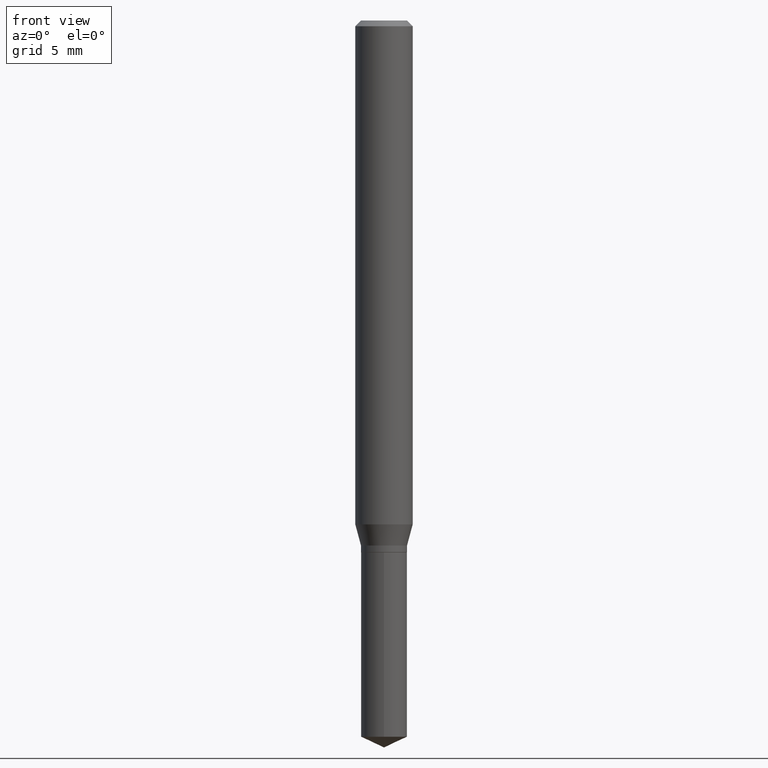
[diagram: clean part render]
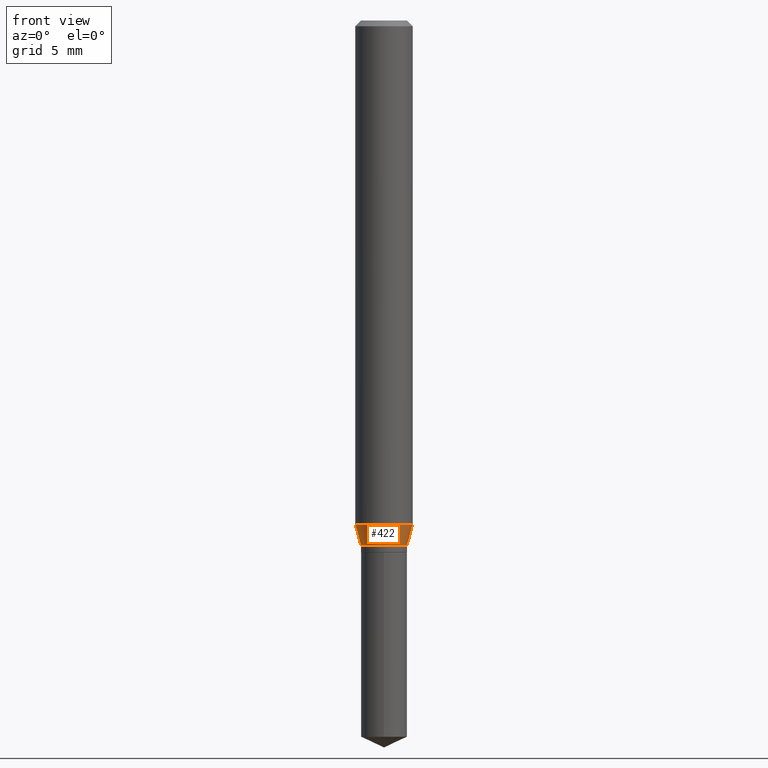
[diagram: same view with one face highlighted and labeled with its STEP entity id]
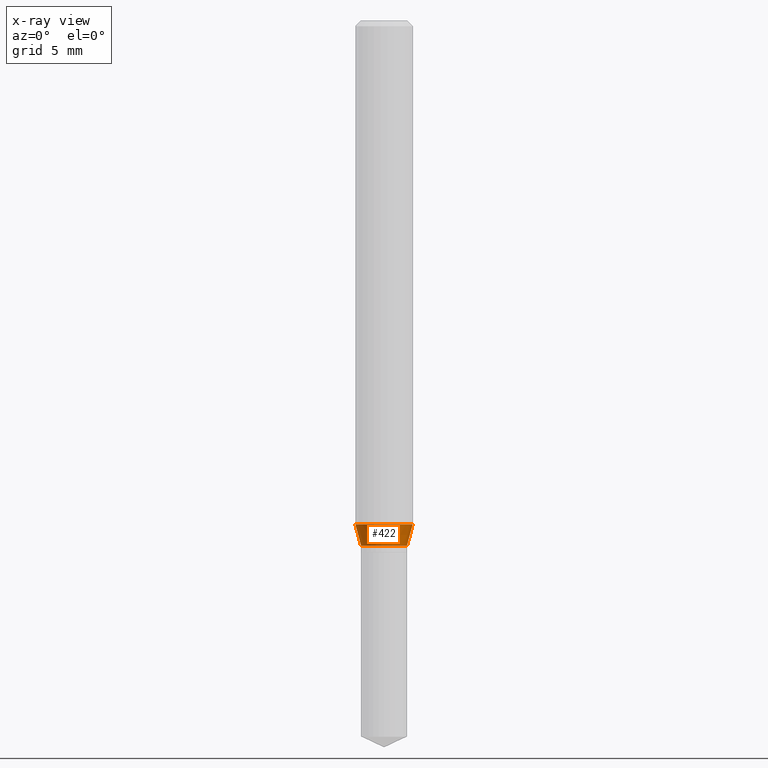
[diagram: x-ray of the same camera — body ghosted, the highlighted face saturated]
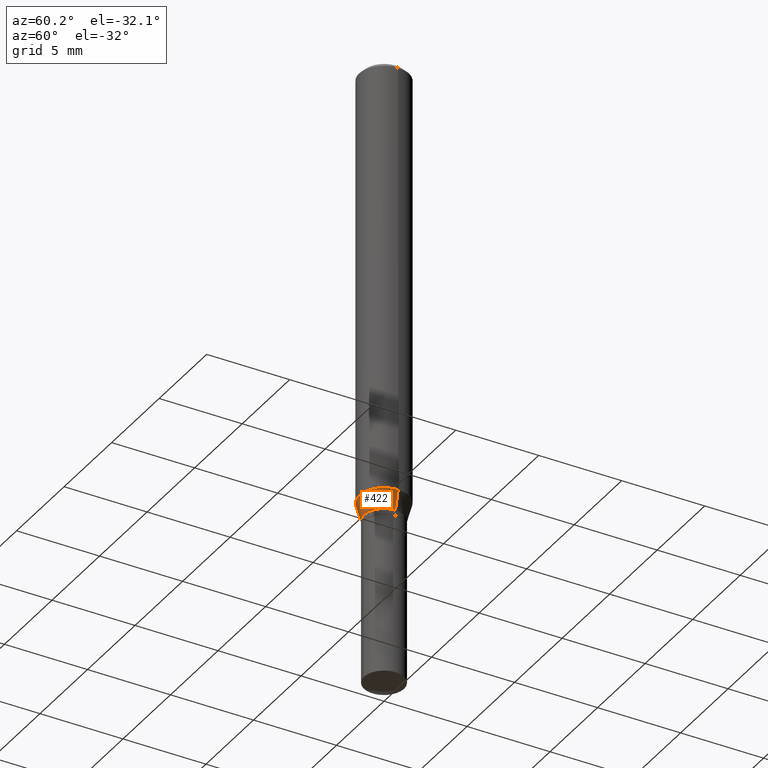
[diagram: same view with one face highlighted and labeled with its STEP entity id]
A machine part, front view. The second image highlights one B-rep face of the part: STEP entity #422.
The next image is the same camera in x-ray: the body ghosted, the highlighted face saturated — about 0% of this face is hidden behind the body in this view.
A second angle (auxiliary view) of the same face is appended — the face is thin or edge-on in the first view.
In plain terms, the highlighted conical surface has half-angle 15 deg.
Its self-contained STEP definition (entity closure, byte-faithful):
#7 = CARTESIAN_POINT ( 'NONE',  ( 0.04744999999999997831, -4.103188869408462916E-15, -1.080300000000000038 ) ) ;
#8 = CARTESIAN_POINT ( 'NONE',  ( 2.641839951321803071E-29, -3.771847290352249705E-15, -1.080300000000000038 ) ) ;
#12 = DIRECTION ( 'NONE',  ( 1.000000000000000000, -6.982962677686267499E-15, 0.000000000000000000 ) ) ;
#16 = AXIS2_PLACEMENT_3D ( 'NONE', #8, #163, #12 ) ;
#71 = CARTESIAN_POINT ( 'NONE',  ( -0.04744999999999997831, -3.434694762234082223E-15, -1.080300000000000038 ) ) ;
#74 = EDGE_CURVE ( 'NONE', #431, #349, #469, .T. ) ;
#87 = DIRECTION ( 'NONE',  ( 1.000000000000000000, -6.982962677686265133E-15, 0.000000000000000000 ) ) ;
#93 = VECTOR ( 'NONE', #268, 39.37007874015748143 ) ;
#97 = ORIENTED_EDGE ( 'NONE', *, *, #171, .F. ) ;
#107 = FACE_OUTER_BOUND ( 'NONE', #206, .T. ) ;
#112 = DIRECTION ( 'NONE',  ( 0.2588190451025214611, 1.565188264969620982E-15, 0.9659258262890679791 ) ) ;
#134 = AXIS2_PLACEMENT_3D ( 'NONE', #360, #460, #456 ) ;
#163 = DIRECTION ( 'NONE',  ( -2.445468806185136597E-29, 3.491481338843145583E-15, 1.000000000000000000 ) ) ;
#167 = AXIS2_PLACEMENT_3D ( 'NONE', #390, #435, #87 ) ;
#171 = EDGE_CURVE ( 'NONE', #279, #331, #421, .T. ) ;
#197 = CONICAL_SURFACE ( 'NONE', #16, 0.04744999999999997831, 0.2617993877991501850 ) ;
#206 = EDGE_LOOP ( 'NONE', ( #481, #430, #386, #97 ) ) ;
#234 = LINE ( 'NONE', #71, #93 ) ;
#268 = DIRECTION ( 'NONE',  ( -0.2588190451025214611, 5.211531920934550253E-15, 0.9659258262890679791 ) ) ;
#271 = CARTESIAN_POINT ( 'NONE',  ( -0.04744999999999997831, -3.458611409405157610E-15, -1.080300000000000038 ) ) ;
#279 = VERTEX_POINT ( 'NONE', #369 ) ;
#304 = CARTESIAN_POINT ( 'NONE',  ( 0.04744999999999997831, -4.103188869408462916E-15, -1.080300000000000038 ) ) ;
#325 = CARTESIAN_POINT ( 'NONE',  ( 0.05905000000000013016, -4.033038761766825162E-15, -1.037008210632200500 ) ) ;
#331 = VERTEX_POINT ( 'NONE', #325 ) ;
#347 = VECTOR ( 'NONE', #112, 39.37007874015748143 ) ;
#349 = VERTEX_POINT ( 'NONE', #304 ) ;
#360 = CARTESIAN_POINT ( 'NONE',  ( 2.641839951321803071E-29, -3.771847290352249705E-15, -1.080300000000000038 ) ) ;
#369 = CARTESIAN_POINT ( 'NONE',  ( -0.05905000000000013016, -3.201119330183110355E-15, -1.037008210632200500 ) ) ;
#386 = ORIENTED_EDGE ( 'NONE', *, *, #434, .T. ) ;
#390 = CARTESIAN_POINT ( 'NONE',  ( 2.535971230858911945E-29, -3.620694815649450242E-15, -1.037008210632200500 ) ) ;
#421 = CIRCLE ( 'NONE', #167, 0.05905000000000013016 ) ;
#422 = ADVANCED_FACE ( 'NONE', ( #107 ), #197, .T. ) ;
#430 = ORIENTED_EDGE ( 'NONE', *, *, #74, .T. ) ;
#431 = VERTEX_POINT ( 'NONE', #271 ) ;
#434 = EDGE_CURVE ( 'NONE', #349, #331, #462, .T. ) ;
#435 = DIRECTION ( 'NONE',  ( -2.445468806185136597E-29, 3.491481338843145583E-15, 1.000000000000000000 ) ) ;
#456 = DIRECTION ( 'NONE',  ( 1.000000000000000000, -6.982962677686267499E-15, 0.000000000000000000 ) ) ;
#460 = DIRECTION ( 'NONE',  ( -2.445468806185136597E-29, 3.491481338843145583E-15, 1.000000000000000000 ) ) ;
#462 = LINE ( 'NONE', #7, #347 ) ;
#469 = CIRCLE ( 'NONE', #134, 0.04744999999999997831 ) ;
#479 = EDGE_CURVE ( 'NONE', #431, #279, #234, .T. ) ;
#481 = ORIENTED_EDGE ( 'NONE', *, *, #479, .F. ) ;